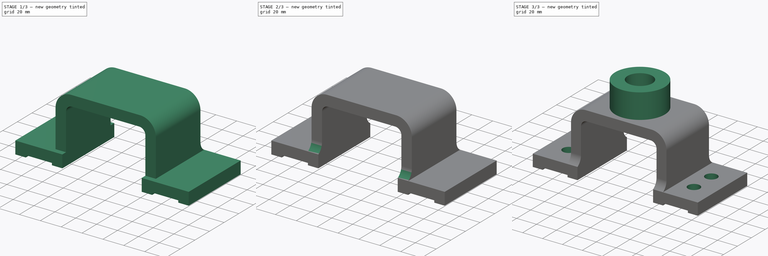
[diagram: build sequence overview — one tinted view per stage of 3, left to right]
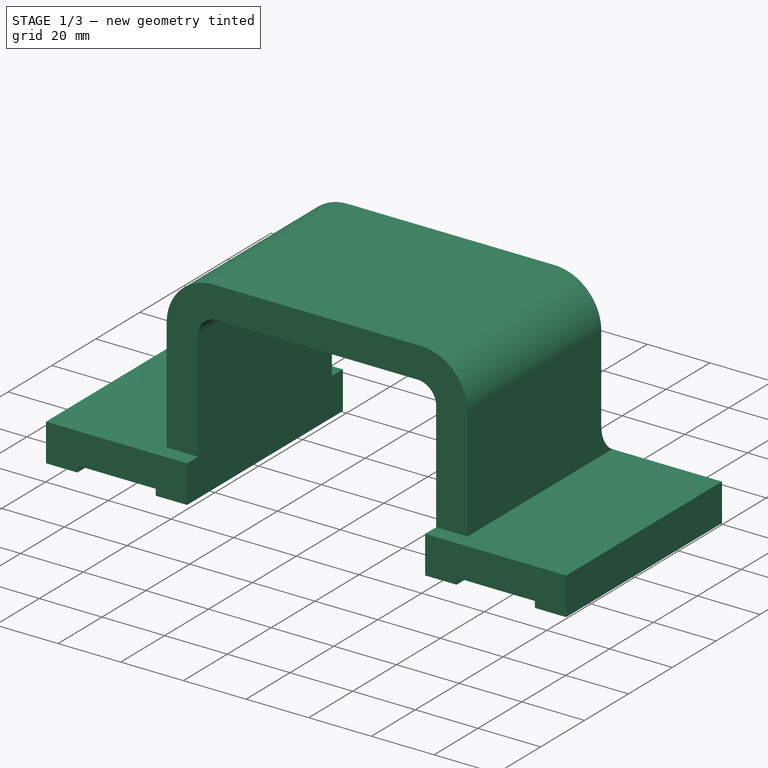
[diagram: stage 1 of 3 — iso view after this stage's code; geometry added in this stage tinted green]
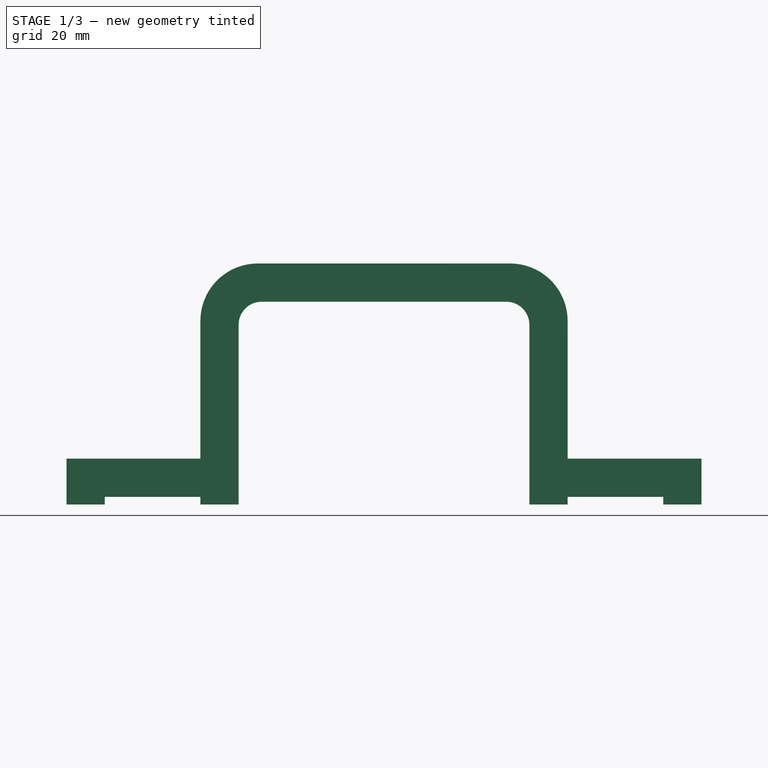
[diagram: stage 1 of 3 — front view after this stage's code; geometry added in this stage tinted green]
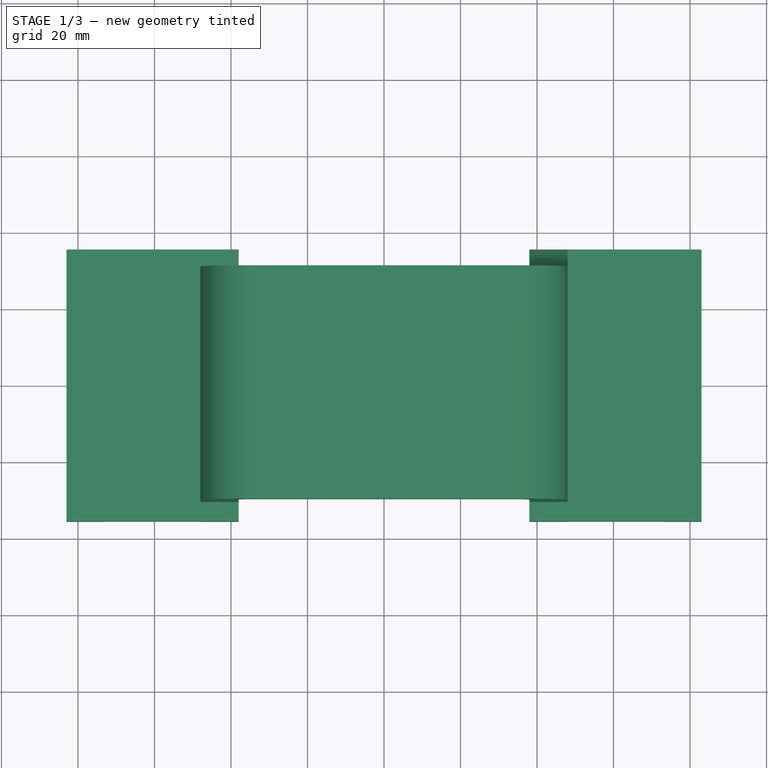
[diagram: stage 1 of 3 — top view after this stage's code; geometry added in this stage tinted green]
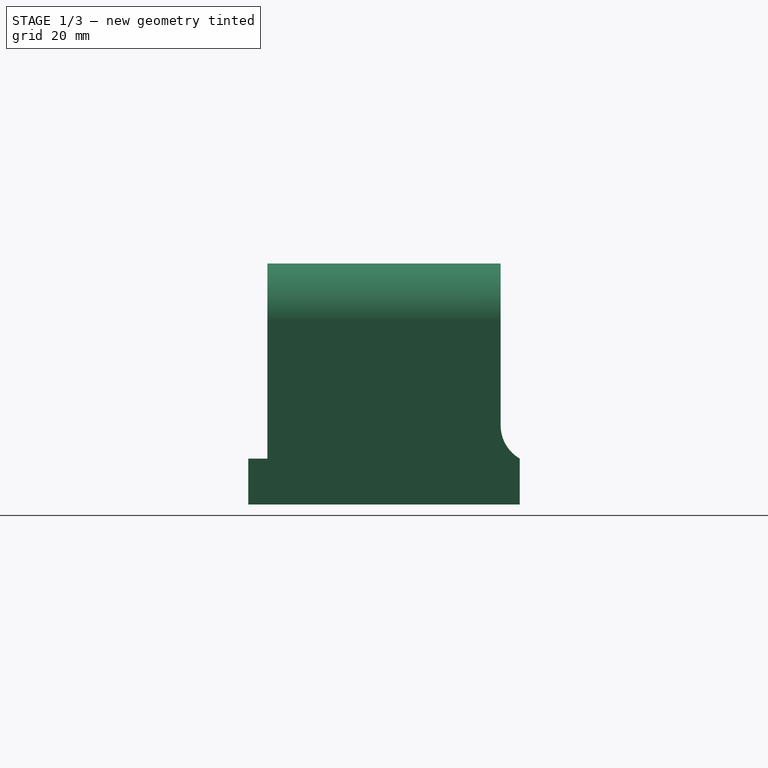
[diagram: stage 1 of 3 — right view after this stage's code; geometry added in this stage tinted green]
FCSTD DOCUMENT  (FreeCAD 0.16R)
Label: Fig 3.22 Final
License: All rights reserved
LicenseURL: http://en.wikipedia.org/wiki/All_rights_reserved
objects: Sketcher::SketchObject×8, PartDesign::Pad×5, PartDesign::Pocket×3, Part::Feature×1
note: 25 computed .brp shape members not serialized (recipe doc carries the construction recipe); baked Part::Feature solids carry a one-line shape summary decoded from their .brp

FEATURE [Sketcher::SketchObject] Sketch
  Placement = pos=(0,0,0) rot=(-1,0,0;4.71239rad)
  sketch-geometry (24):
    g0: LineSegment StartX=-83 StartY=0 StartZ=0 EndX=-73 EndY=0 EndZ=0
    g1: LineSegment StartX=-73 StartY=0 StartZ=0 EndX=-73 EndY=2 EndZ=0
    g2: LineSegment StartX=-73 StartY=2 StartZ=0 EndX=-48 EndY=2 EndZ=0
    g3: LineSegment StartX=-48 StartY=2 StartZ=0 EndX=-48 EndY=0 EndZ=0
    g4: LineSegment StartX=-48 StartY=0 StartZ=0 EndX=-38 EndY=0 EndZ=0
    g5: LineSegment StartX=-38 StartY=0 StartZ=0 EndX=-38 EndY=47 EndZ=0
    g6: LineSegment StartX=-32 StartY=53 StartZ=0 EndX=32 EndY=53 EndZ=0
    g7: LineSegment StartX=38 StartY=47 StartZ=0 EndX=38 EndY=0 EndZ=0
    g8: LineSegment StartX=38 StartY=0 StartZ=0 EndX=48 EndY=0 EndZ=0
    g9: LineSegment StartX=48 StartY=0 StartZ=0 EndX=48 EndY=2 EndZ=0
    g10: LineSegment StartX=48 StartY=2 StartZ=0 EndX=73 EndY=2 EndZ=0
    g11: LineSegment StartX=73 StartY=2 StartZ=0 EndX=73 EndY=0 EndZ=0
    g12: LineSegment StartX=73 StartY=0 StartZ=0 EndX=83 EndY=0 EndZ=0
    g13: LineSegment StartX=83 StartY=0 StartZ=0 EndX=83 EndY=12 EndZ=0
    g14: LineSegment StartX=83 StartY=12 StartZ=0 EndX=48 EndY=12 EndZ=0
    g15: LineSegment StartX=48 StartY=12 StartZ=0 EndX=48 EndY=48 EndZ=0
    g16: LineSegment StartX=33 StartY=63 StartZ=0 EndX=-33 EndY=63 EndZ=0
    g17: LineSegment StartX=-48 StartY=48 StartZ=0 EndX=-48 EndY=12 EndZ=0
    g18: LineSegment StartX=-48 StartY=12 StartZ=0 EndX=-83 EndY=12 EndZ=0
    g19: LineSegment StartX=-83 StartY=12 StartZ=0 EndX=-83 EndY=0 EndZ=0
    g20: ArcOfCircle CenterX=-33 CenterY=48 CenterZ=0 NormalX=0 NormalY=0 NormalZ=1 Radius=15 StartAngle=1.5708 EndAngle=3.14159
    g21: ArcOfCircle CenterX=33 CenterY=48 CenterZ=0 NormalX=0 NormalY=0 NormalZ=1 Radius=15 StartAngle=0 EndAngle=1.5708
    g22: ArcOfCircle CenterX=-32 CenterY=47 CenterZ=0 NormalX=0 NormalY=0 NormalZ=1 Radius=6 StartAngle=1.5708 EndAngle=3.14159
    g23: ArcOfCircle CenterX=32 CenterY=47 CenterZ=0 NormalX=0 NormalY=0 NormalZ=1 Radius=6 StartAngle=0 EndAngle=1.5708
  constraints (67):
    c: PointOnObject(g0,g-1)
    c: Coincident(g0,g1)
    c: Coincident(g1,g2)
    c: Horizontal(g2)
    c: Coincident(g2,g3)
    c: Vertical(g3)
    c: Coincident(g3,g4)
    c: Horizontal(g4)
    c: Coincident(g4,g5)
    c: Vertical(g5)
    c: Horizontal(g6)
    c: Vertical(g7)
    c: Coincident(g7,g8)
    c: PointOnObject(g8,g-1)
    c: Horizontal(g8)
    c: Coincident(g8,g9)
    c: Vertical(g9)
    c: Coincident(g9,g10)
    c: Coincident(g10,g11)
    c: Vertical(g11)
    c: Coincident(g11,g12)
    c: PointOnObject(g12,g-1)
    c: Horizontal(g12)
    c: Coincident(g12,g13)
    c: Coincident(g13,g14)
    c: Coincident(g14,g15)
    c: Vertical(g15)
    c: Horizontal(g16)
    c: Vertical(g17)
    c: Coincident(g17,g18)
    c: Horizontal(g18)
    c: Coincident(g18,g19)
    c: Horizontal(g0)
    c: Equal(g0,g4)
    c: Equal(g4,g8)
    c: Equal(g8,g12)
    c: DistanceX(g3,g4) = 10
    c: Vertical(g19)
    c: Vertical(g1)
    c: Horizontal(g10)
    c: Horizontal(g14)
    c: Equal(g2,g10)
    c: DistanceX(g9,g10) = 25
    c: Coincident(g0,g19)
    c: DistanceY(g0,g1) = 2
    c: DistanceY(g8,g9) = 2
    c: DistanceY(g12,g13) = 12
    c: DistanceY(g0,g18) = 12
    c: DistanceX(g4,g7) = 76
    c: DistanceX(g18,g17) = 35
    c: Vertical(g13)
    c: DistanceX(g14,g13) = 35
    c: Symmetric(g4,g7,g-2)
    c: Tangent(g16,g20) = -1.5708
    c: Tangent(g17,g20) = -1.5708
    c: Tangent(g16,g21) = -1.5708
    c: Tangent(g15,g21) = -1.5708
    c: Tangent(g6,g22) = 1.5708
    c: Tangent(g5,g22) = 1.5708
    c: Tangent(g6,g23) = 1.5708
    c: Tangent(g7,g23) = 1.5708
    c: Radius(g20) = 15
    c: Radius(g21) = 15
    c: Radius(g23) = 6
    c: Radius(g22) = 6
    c: DistanceY(g6,g16) = 10
    c: DistanceY(g4,g6) = 53
FEATURE [PartDesign::Pad] Pad
  Length = 71
  Length2 = 100
  Midplane = true
  Placement = pos=(0,0,0) rot=(-1,0,0;4.71239rad)
  Sketch = -> Sketch
  Type = 0
FEATURE [Sketcher::SketchObject] Sketch001
  ExternalGeometry = -> [Pad]
  Placement = pos=(48,0,0) rot=(0.707107,0,0.707107;3.14159rad)
  Support = -> Pad [Face9]
  sketch-geometry (8):
    g0: LineSegment StartX=12 StartY=30.5 StartZ=0 EndX=99.2859 EndY=30.5 EndZ=0
    g1: LineSegment StartX=99.2859 StartY=30.5 StartZ=0 EndX=99.2859 EndY=35.5 EndZ=0
    g2: LineSegment StartX=99.2859 StartY=35.5 StartZ=0 EndX=12 EndY=35.5 EndZ=0
    g3: LineSegment StartX=12 StartY=35.5 StartZ=0 EndX=12 EndY=30.5 EndZ=0
    g4: LineSegment StartX=12 StartY=-30.5 StartZ=0 EndX=97.6095 EndY=-30.5 EndZ=0
    g5: LineSegment StartX=97.6095 StartY=-30.5 StartZ=0 EndX=97.6095 EndY=-35.5 EndZ=0
    g6: LineSegment StartX=97.6095 StartY=-35.5 StartZ=0 EndX=12 EndY=-35.5 EndZ=0
    g7: LineSegment StartX=12 StartY=-35.5 StartZ=0 EndX=12 EndY=-30.5 EndZ=0
  constraints (20):
    c: Coincident(g0,g1)
    c: Coincident(g1,g2)
    c: Coincident(g2,g3)
    c: Coincident(g3,g0)
    c: Horizontal(g0)
    c: Horizontal(g2)
    c: Vertical(g1)
    c: Vertical(g3)
    c: Coincident(g4,g5)
    c: Coincident(g5,g6)
    c: Coincident(g6,g7)
    c: Coincident(g7,g4)
    c: Horizontal(g4)
    c: Horizontal(g6)
    c: Vertical(g5)
    c: Vertical(g7)
    c: Coincident(g-4,g6)
    c: Coincident(g2,g-3)
    c: DistanceY(g1,g1) = 5
    c: DistanceY(g5,g5) = 5
FEATURE [PartDesign::Pocket] Pocket
  Length = 5
  Placement = pos=(0,0,0) rot=(-1,0,0;4.71239rad)
  Sketch = -> Sketch001
  Type = 1
FEATURE [Sketcher::SketchObject] Sketch002
  ExternalGeometry = -> [Pocket]
  Placement = pos=(48,0,0) rot=(0.707107,0,0.707107;3.14159rad)
  Support = -> Pocket [Face11]
  sketch-geometry (3):
    g0: ArcOfCircle CenterX=20.6603 CenterY=-40.5 CenterZ=0 NormalX=0 NormalY=0 NormalZ=1 Radius=10 StartAngle=1.57079 EndAngle=2.61799
    g1: LineSegment StartX=20.6603 StartY=-30.5 StartZ=0 EndX=12 EndY=-30.5 EndZ=0
    g2: LineSegment StartX=12 StartY=-30.5 StartZ=0 EndX=12 EndY=-35.5 EndZ=0
  constraints (8):
    c: Coincident(g0,g-4)
    c: PointOnObject(g0,g-3)
    c: Radius(g0) = 10
    c: Tangent(g0,g-3)
    c: Coincident(g0,g1)
    c: Coincident(g1,g2)
    c: Coincident(g2,g0)
    c: Coincident(g1,g-3)
FEATURE [PartDesign::Pad] Pad001
  Length = 10
  Length2 = 100
  Placement = pos=(0,0,0) rot=(-1,0,0;4.71239rad)
  Reversed = true
  Sketch = -> Sketch002
  Type = 0
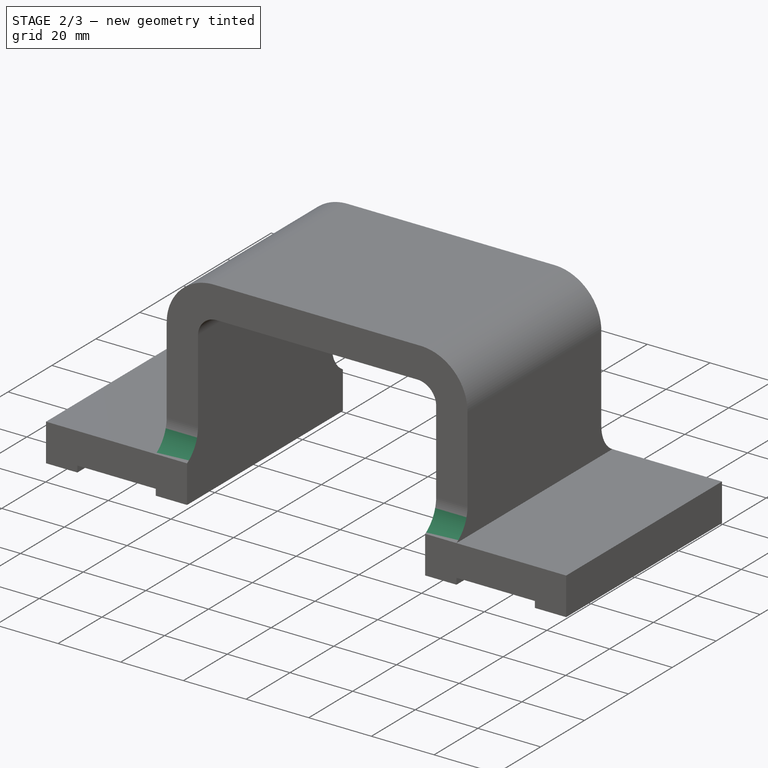
[diagram: stage 2 of 3 — iso view after this stage's code; geometry added in this stage tinted green]
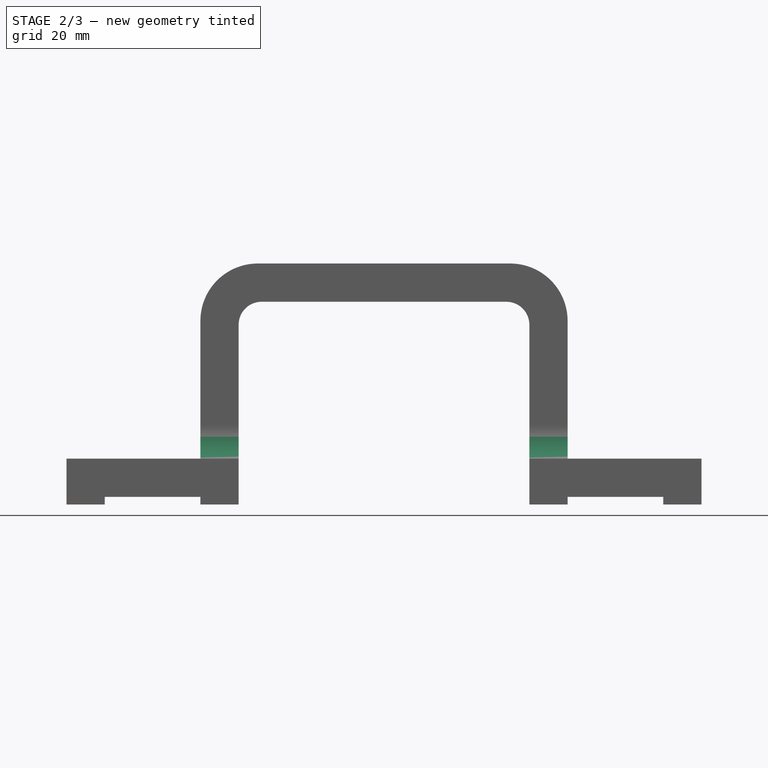
[diagram: stage 2 of 3 — front view after this stage's code; geometry added in this stage tinted green]
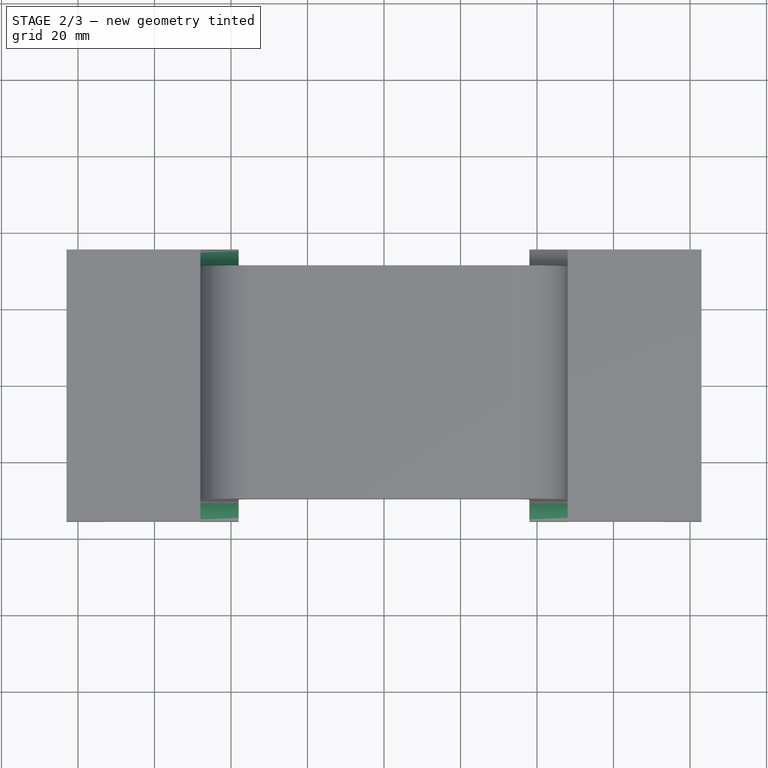
[diagram: stage 2 of 3 — top view after this stage's code; geometry added in this stage tinted green]
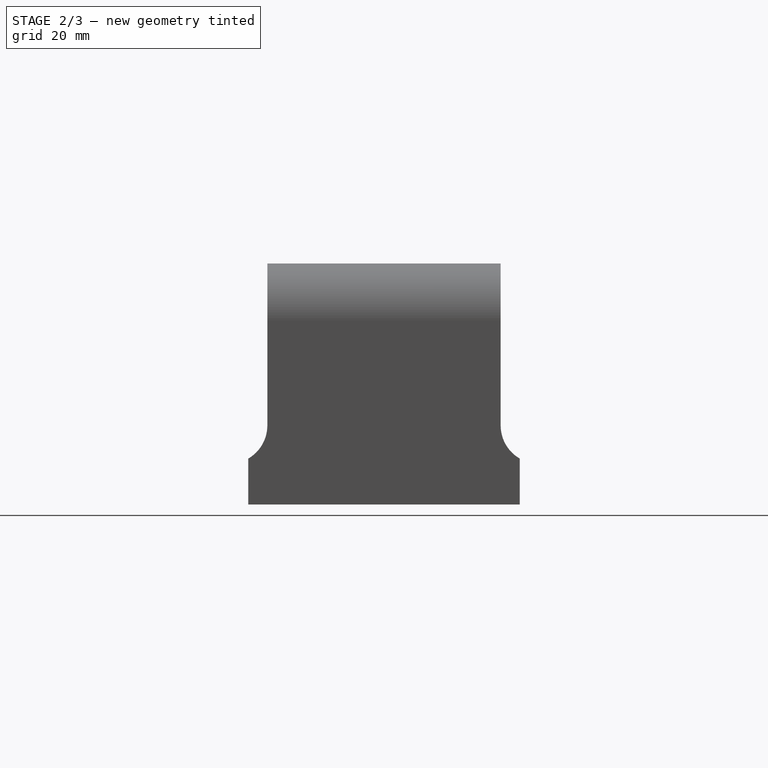
[diagram: stage 2 of 3 — right view after this stage's code; geometry added in this stage tinted green]
FEATURE [Sketcher::SketchObject] Sketch003
  ExternalGeometry = -> [Pad001]
  Placement = pos=(48,0,0) rot=(0.707107,0,0.707107;3.14159rad)
  Support = -> Pad001 [Face31]
  sketch-geometry (3):
    g0: ArcOfCircle CenterX=20.6603 CenterY=40.5 CenterZ=0 NormalX=0 NormalY=0 NormalZ=1 Radius=10 StartAngle=3.66519 EndAngle=4.71239
    g1: LineSegment StartX=12 StartY=35.5 StartZ=0 EndX=12 EndY=30.5 EndZ=0
    g2: LineSegment StartX=12 StartY=30.5 StartZ=0 EndX=20.6603 EndY=30.5 EndZ=0
  constraints (8):
    c: PointOnObject(g0,g-4)
    c: Radius(g0) = 10
    c: Coincident(g0,g-3)
    c: Tangent(g0,g-4)
    c: Coincident(g0,g1)
    c: Coincident(g1,g2)
    c: Coincident(g2,g0)
    c: Coincident(g-4,g1)
FEATURE [PartDesign::Pad] Pad002
  Length = 10
  Length2 = 100
  Placement = pos=(0,0,0) rot=(-1,0,0;4.71239rad)
  Reversed = true
  Sketch = -> Sketch003
  Type = 0
FEATURE [Sketcher::SketchObject] Sketch004
  ExternalGeometry = -> [Pad002]
  Placement = pos=(-48,0,0) rot=(0.707107,0,-0.707107;3.14159rad)
  Support = -> Pad002 [Face11]
  sketch-geometry (8):
    g0: ArcOfCircle CenterX=-20.6603 CenterY=-40.5 CenterZ=0 NormalX=0 NormalY=0 NormalZ=1 Radius=10 StartAngle=0.523599 EndAngle=1.5708
    g1: ArcOfCircle CenterX=-20.6603 CenterY=40.5 CenterZ=0 NormalX=0 NormalY=0 NormalZ=1 Radius=10 StartAngle=4.71239 EndAngle=5.75959
    g2: LineSegment StartX=-20.6602 StartY=30.5 StartZ=0 EndX=-12 EndY=30.5 EndZ=0
    g3: LineSegment StartX=-12 StartY=30.5 StartZ=0 EndX=-12 EndY=35.5 EndZ=0
    g4: LineSegment StartX=-20.6602 StartY=-30.5 StartZ=0 EndX=-12 EndY=-30.5 EndZ=0
    g5: LineSegment StartX=-12 StartY=-30.5 StartZ=0 EndX=-12 EndY=-35.5 EndZ=0
    g6: LineSegment StartX=-12 StartY=-35.5 StartZ=0 EndX=-12 EndY=-30.5 EndZ=0
    g7: LineSegment StartX=-12 StartY=-30.5 StartZ=0 EndX=-20.6603 EndY=-30.5 EndZ=0
  constraints (21):
    c: PointOnObject(g0,g-5)
    c: Coincident(g0,g-6)
    c: Coincident(g1,g-3)
    c: PointOnObject(g1,g-4)
    c: Tangent(g1,g-4)
    c: Radius(g1) = 10
    c: Coincident(g1,g2)
    c: Coincident(g2,g3)
    c: Coincident(g3,g1)
    c: Coincident(g2,g-4)
    c: Radius(g0) = 10
    c: Tangent(g0,g-5)
    c: Horizontal(g4)
    c: Tangent(g4,g0)
    c: Coincident(g4,g5)
    c: Coincident(g5,g0)
    c: Coincident(g4,g-6)
    c: Coincident(g0,g6)
    c: Coincident(g6,g7)
    c: Coincident(g7,g0)
    c: Coincident(g6,g4)
FEATURE [PartDesign::Pad] Pad003
  Length = 10
  Length2 = 100
  Placement = pos=(0,0,0) rot=(-1,0,0;4.71239rad)
  Reversed = true
  Sketch = -> Sketch004
  Type = 0
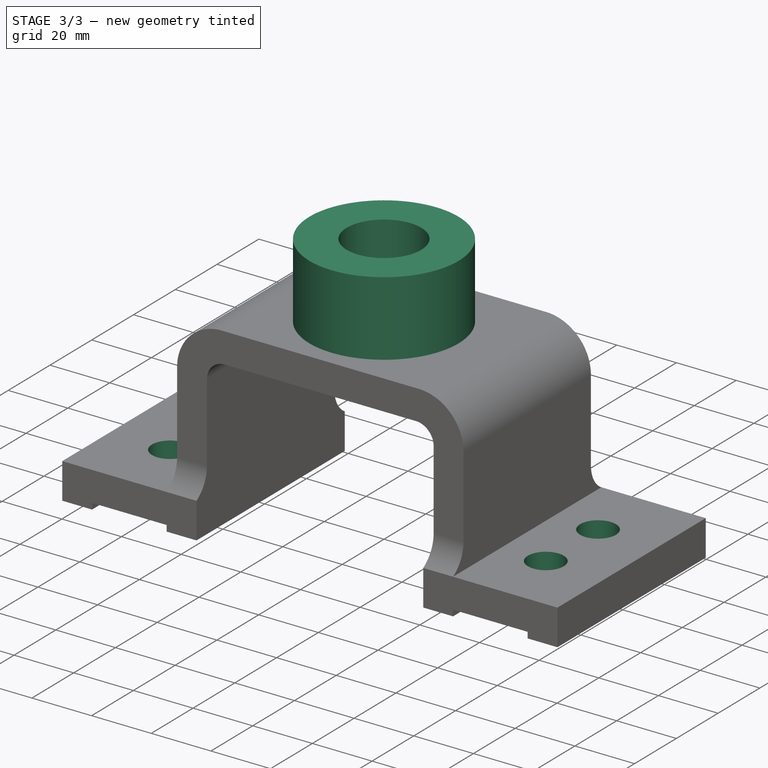
[diagram: stage 3 of 3 — iso view after this stage's code; geometry added in this stage tinted green]
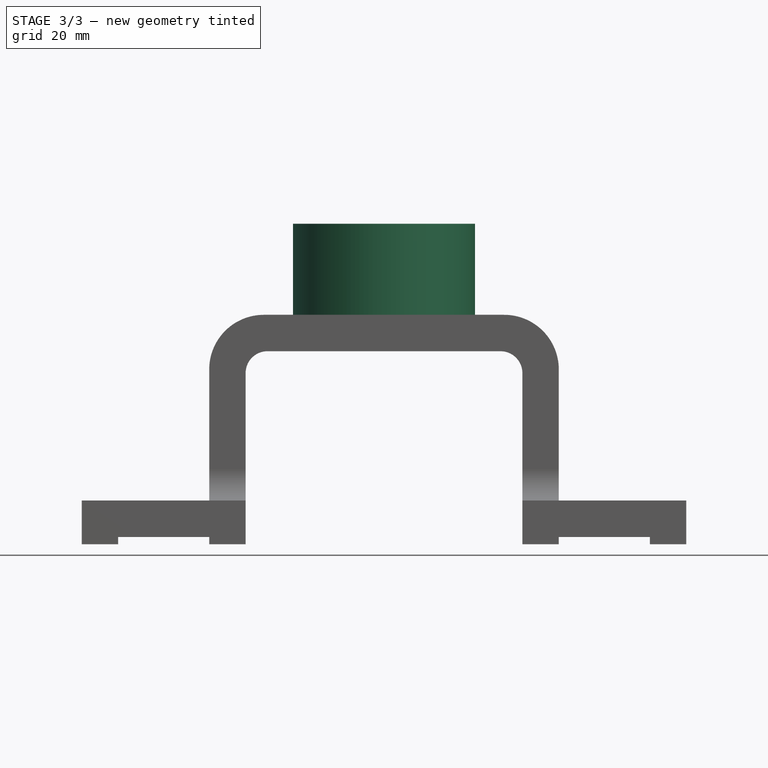
[diagram: stage 3 of 3 — front view after this stage's code; geometry added in this stage tinted green]
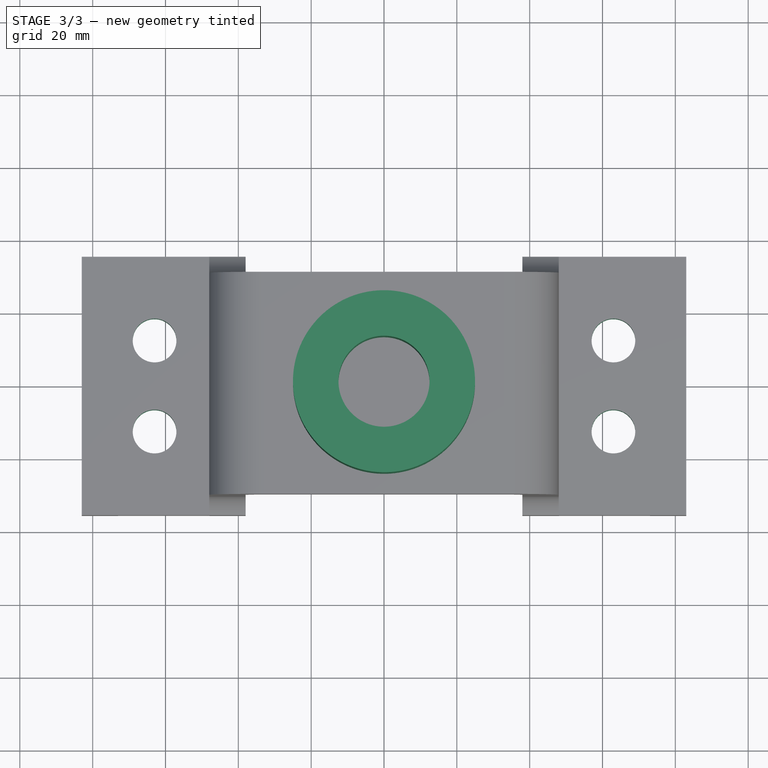
[diagram: stage 3 of 3 — top view after this stage's code; geometry added in this stage tinted green]
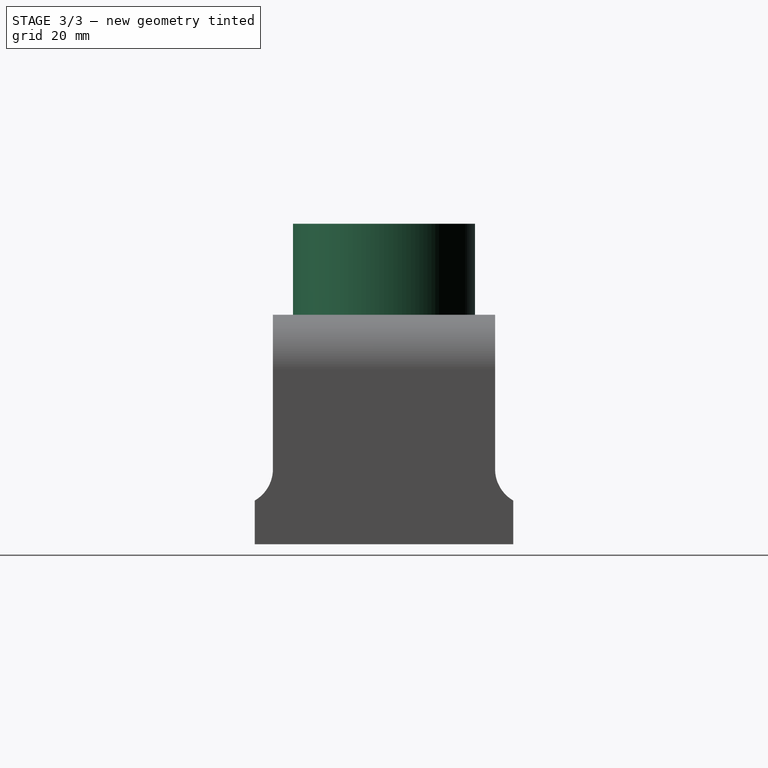
[diagram: stage 3 of 3 — right view after this stage's code; geometry added in this stage tinted green]
FEATURE [Sketcher::SketchObject] Sketch005
  Placement = pos=(0,0,63) rot=(0,0,1;3.14159rad)
  Support = -> Pad003 [Face10]
  sketch-geometry (1):
    g0: Circle CenterX=0 CenterY=0 CenterZ=0 NormalX=0 NormalY=0 NormalZ=1 Radius=25
  constraints (2):
    c: Coincident(g0,g-1)
    c: Radius(g0) = 25
FEATURE [PartDesign::Pad] Pad004
  Length = 25
  Length2 = 100
  Placement = pos=(0,0,0) rot=(-1,0,0;4.71239rad)
  Sketch = -> Sketch005
  Type = 0
FEATURE [Sketcher::SketchObject] Sketch006
  Placement = pos=(0,0,88) rot=(0,0,1;3.14159rad)
  Support = -> Pad004 [Face31]
  sketch-geometry (1):
    g0: Circle CenterX=0 CenterY=0 CenterZ=0 NormalX=0 NormalY=0 NormalZ=1 Radius=12.5
  constraints (2):
    c: Coincident(g0,g-1)
    c: Radius(g0) = 12.5
FEATURE [PartDesign::Pocket] Pocket001
  Length = 25
  Placement = pos=(0,0,0) rot=(-1,0,0;4.71239rad)
  Sketch = -> Sketch006
  Type = 0
FEATURE [Sketcher::SketchObject] Sketch007
  ExternalGeometry = -> [Pocket001]
  Placement = pos=(0,0,12) rot=(0,0,1;3.14159rad)
  Support = -> Pocket001 [Face20]
  sketch-geometry (4):
    g0: Circle CenterX=-63 CenterY=12.5 CenterZ=0 NormalX=0 NormalY=0 NormalZ=1 Radius=6
    g1: Circle CenterX=-63 CenterY=-12.5 CenterZ=0 NormalX=0 NormalY=0 NormalZ=1 Radius=6
    g2: Circle CenterX=63 CenterY=12.5 CenterZ=0 NormalX=0 NormalY=0 NormalZ=1 Radius=6
    g3: Circle CenterX=63 CenterY=-12.5 CenterZ=0 NormalX=0 NormalY=0 NormalZ=1 Radius=6
  constraints (10):
    c: Equal(g1,g0)
    c: Equal(g0,g2)
    c: Equal(g2,g3)
    c: Radius(g0) = 6
    c: DistanceY(g1,g0) = 25
    c: DistanceY(g3,g2) = 25
    c: Symmetric(g3,g2,g-1)
    c: Symmetric(g1,g0,g-1)
    c: DistanceX(g2,g-6) = 20
    c: DistanceX(g-4,g1) = 20
FEATURE [PartDesign::Pocket] Pocket002
  Length = 5
  Placement = pos=(0,0,0) rot=(-1,0,0;4.71239rad)
  Sketch = -> Sketch007
  Type = 1
FEATURE [Part::Feature] Pocket002001  label="Pocket003"
  shape: bbox 166 x 71 x 88 mm, 42 faces (baked)
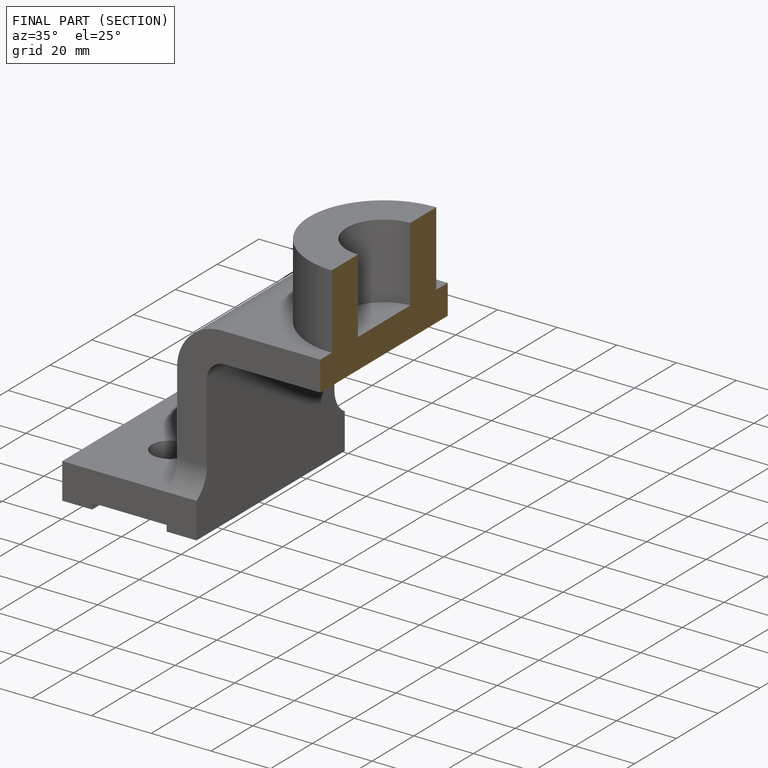
[diagram: finished part — half-section view (interior)]
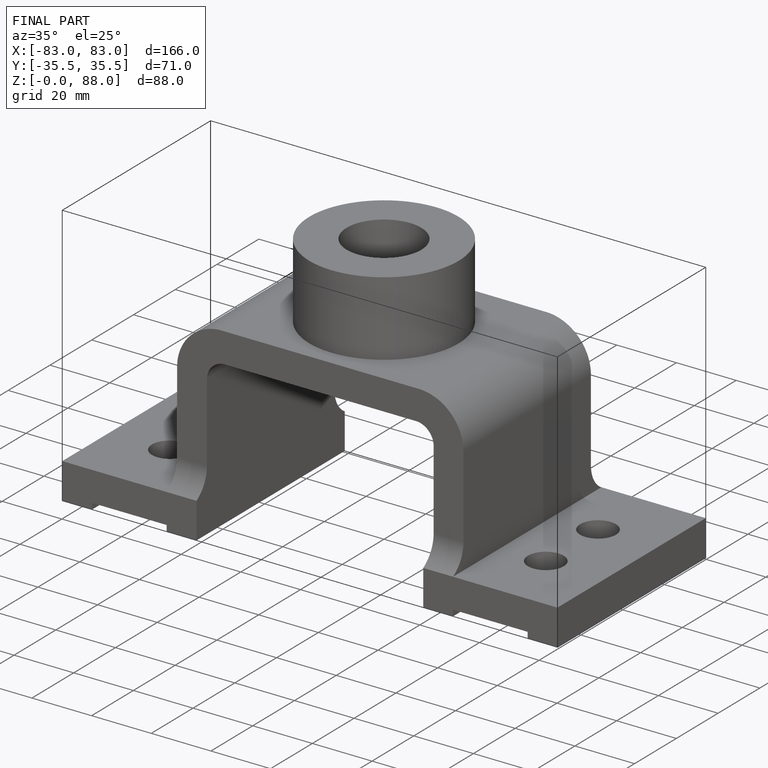
[diagram: finished part — iso view with bounding-box wireframe]
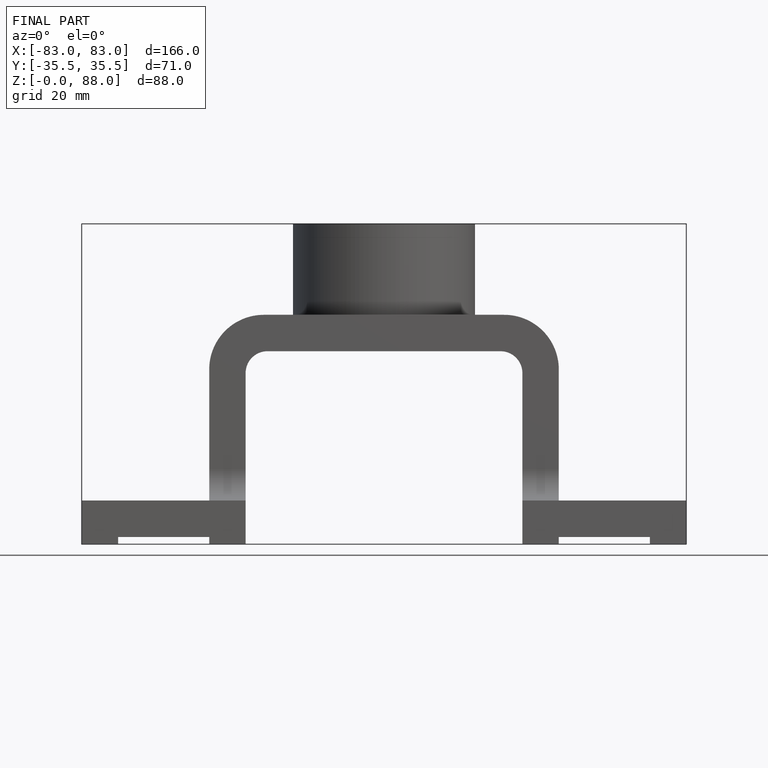
[diagram: finished part — front view with bounding-box wireframe]
